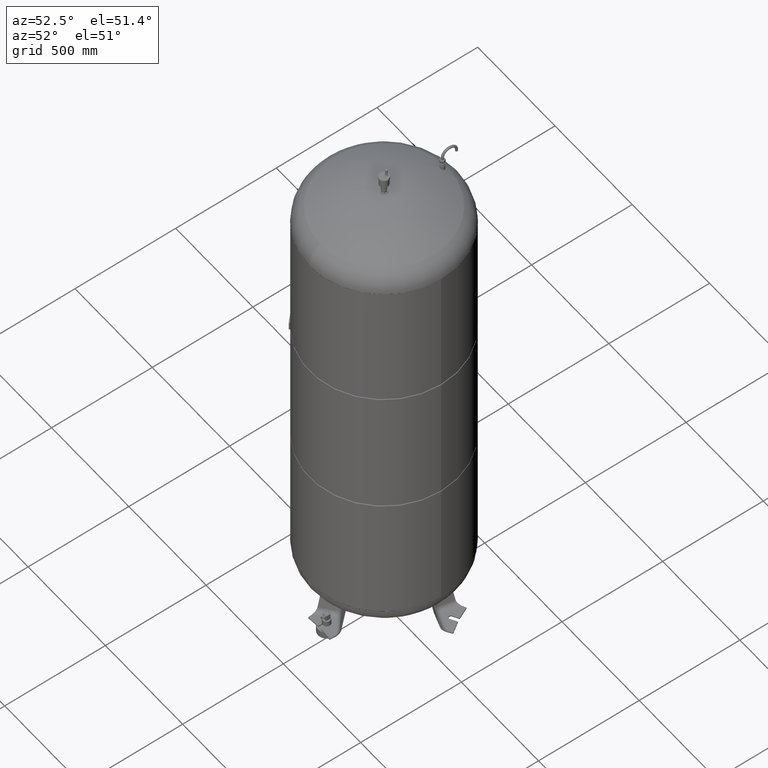
[diagram: clean part render]
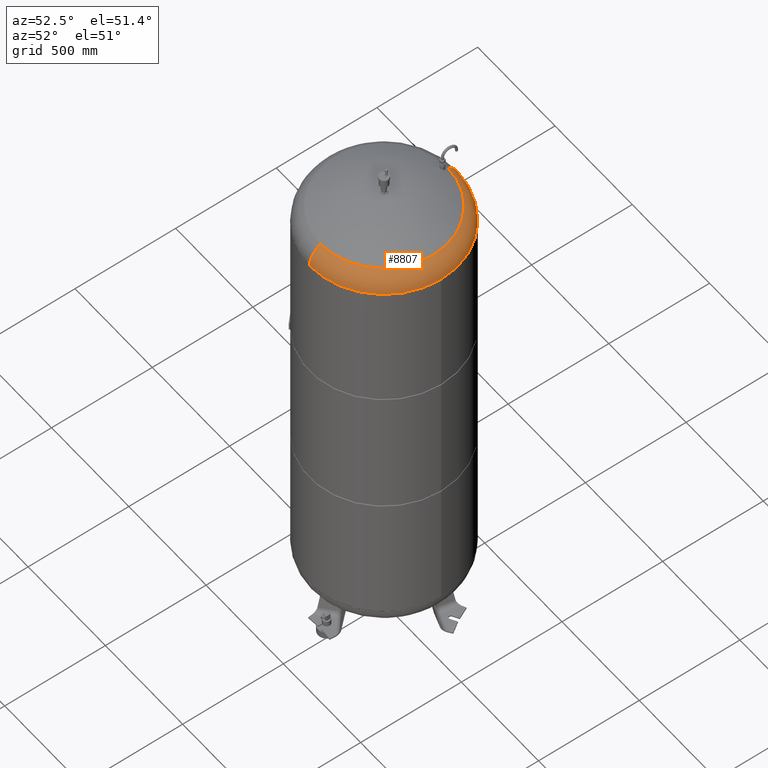
[diagram: same view with one face highlighted and labeled with its STEP entity id]
A machine part, auxiliary view. The second image highlights one B-rep face of the part: STEP entity #8807.
In plain terms, the highlighted toroidal blend (fillet) surface has major radius 254.5 mm and minor (blend) radius 115.5 mm.
Its self-contained STEP definition (entity closure, byte-faithful):
#8712=CARTESIAN_POINT('',(370.0,-3.468087E-014,2371.206120388130300));
#8713=VERTEX_POINT('',#8712);
#8737=CARTESIAN_POINT('',(2.218985E-014,369.999999999999940,2371.206120388130300));
#8738=VERTEX_POINT('',#8737);
#8746=CARTESIAN_POINT('',(-2.312058E-014,-3.468087E-014,2371.206120388130300));
#8747=DIRECTION('',(0.0,0.0,-1.0));
#8748=DIRECTION('',(1.0,0.0,0.0));
#8749=AXIS2_PLACEMENT_3D('',#8746,#8747,#8748);
#8750=CIRCLE('',#8749,370.0);
#8751=EDGE_CURVE('',#8738,#8713,#8750,.T.);
#8756=CARTESIAN_POINT('',(-2.312058E-014,-3.468087E-014,2371.206120388130300));
#8757=DIRECTION('',(-1.224647E-016,-1.836970E-016,-1.0));
#8758=DIRECTION('',(0.0,-1.0,0.0));
#8759=AXIS2_PLACEMENT_3D('',#8756,#8757,#8758);
#8760=TOROIDAL_SURFACE('',#8759,254.500000000000030,115.500000000000000);
#8761=CARTESIAN_POINT('',(-2.312058E-014,-370.000000000000060,2371.206120388130300));
#8762=VERTEX_POINT('',#8761);
#8763=CARTESIAN_POINT('',(-1.114251E-014,-315.931034482758610,2469.014494274920300));
#8764=VERTEX_POINT('',#8763);
#8765=CARTESIAN_POINT('',(-2.312058E-014,-254.500000000000060,2371.206120388130300));
#8766=DIRECTION('',(-1.0,0.0,0.0));
#8767=DIRECTION('',(0.0,-1.0,0.0));
#8768=AXIS2_PLACEMENT_3D('',#8765,#8766,#8767);
#8769=CIRCLE('',#8768,115.500000000000000);
#8770=EDGE_CURVE('',#8762,#8764,#8769,.T.);
#8771=ORIENTED_EDGE('',*,*,#8770,.F.);
#8772=CARTESIAN_POINT('',(-2.312058E-014,-3.468087E-014,2371.206120388130300));
#8773=DIRECTION('',(0.0,0.0,-1.0));
#8774=DIRECTION('',(1.0,0.0,0.0));
#8775=AXIS2_PLACEMENT_3D('',#8772,#8773,#8774);
#8776=CIRCLE('',#8775,370.0);
#8777=EDGE_CURVE('',#8713,#8762,#8776,.T.);
#8778=ORIENTED_EDGE('',*,*,#8777,.F.);
#8779=ORIENTED_EDGE('',*,*,#8751,.F.);
#8780=CARTESIAN_POINT('',(2.754660E-014,315.931034482758610,2469.014494274920300));
#8781=VERTEX_POINT('',#8780);
#8782=CARTESIAN_POINT('',(8.045650E-015,254.500000000000000,2371.206120388130300));
#8783=DIRECTION('',(1.0,0.0,0.0));
#8784=DIRECTION('',(0.0,1.0,0.0));
#8785=AXIS2_PLACEMENT_3D('',#8782,#8783,#8784);
#8786=CIRCLE('',#8785,115.500000000000000);
#8787=EDGE_CURVE('',#8738,#8781,#8786,.T.);
#8788=ORIENTED_EDGE('',*,*,#8787,.T.);
#8789=CARTESIAN_POINT('',(315.931034482758610,-1.671377E-014,2469.014494274920300));
#8790=VERTEX_POINT('',#8789);
#8791=CARTESIAN_POINT('',(-1.114251E-014,-1.671377E-014,2469.014494274920300));
#8792=DIRECTION('',(0.0,0.0,-1.0));
#8793=DIRECTION('',(1.0,0.0,0.0));
#8794=AXIS2_PLACEMENT_3D('',#8791,#8792,#8793);
#8795=CIRCLE('',#8794,315.931034482758610);
#8796=EDGE_CURVE('',#8781,#8790,#8795,.T.);
#8797=ORIENTED_EDGE('',*,*,#8796,.T.);
#8798=CARTESIAN_POINT('',(-1.114251E-014,-1.671377E-014,2469.014494274920300));
#8799=DIRECTION('',(0.0,0.0,-1.0));
#8800=DIRECTION('',(1.0,0.0,0.0));
#8801=AXIS2_PLACEMENT_3D('',#8798,#8799,#8800);
#8802=CIRCLE('',#8801,315.931034482758610);
#8803=EDGE_CURVE('',#8790,#8764,#8802,.T.);
#8804=ORIENTED_EDGE('',*,*,#8803,.T.);
#8805=EDGE_LOOP('',(#8771,#8778,#8779,#8788,#8797,#8804));
#8806=FACE_OUTER_BOUND('',#8805,.T.);
#8807=ADVANCED_FACE('',(#8806),#8760,.T.);